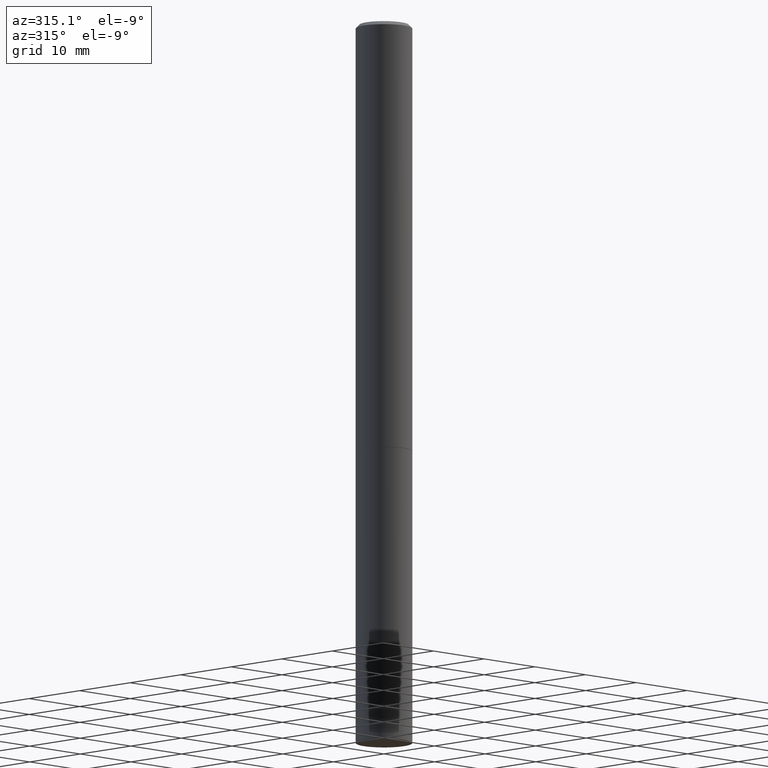
[diagram: clean part render]
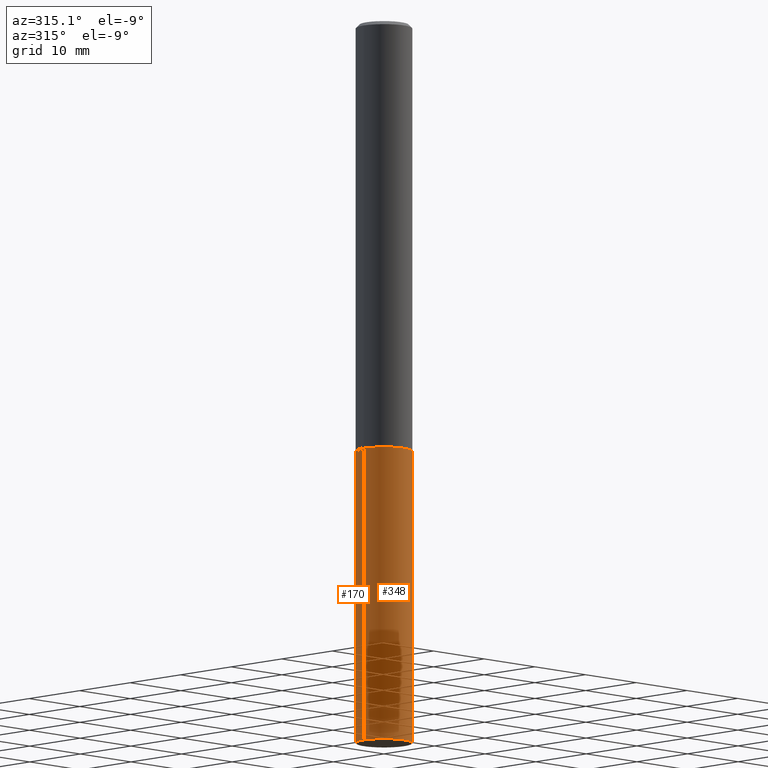
[diagram: same view with one multi-face feature highlighted, each face labeled with its STEP entity id]
A machine part, auxiliary view. The highlighted faces form ONE feature: a constant-radius fillet chain: 2 tangent blend faces with common blend radius 3.9688 mm. The faces share edges in the B-rep.
Their STEP definitions:
[1] entity #170 (Cylinder):
#12 = DIRECTION ( 'NONE',  ( -2.445468806185136597E-29, 3.491481338843145583E-15, 1.000000000000000000 ) ) ;
#20 = CYLINDRICAL_SURFACE ( 'NONE', #230, 0.1562500000000000000 ) ;
#21 = DIRECTION ( 'NONE',  ( 1.000000000000000000, -6.982962677686262766E-15, 0.000000000000000000 ) ) ;
#22 = EDGE_CURVE ( 'NONE', #262, #85, #371, .T. ) ;
#27 = CIRCLE ( 'NONE', #244, 0.1562500000000000000 ) ;
#35 = LINE ( 'NONE', #331, #91 ) ;
#39 = EDGE_CURVE ( 'NONE', #55, #148, #35, .T. ) ;
#51 = ORIENTED_EDGE ( 'NONE', *, *, #260, .F. ) ;
#55 = VERTEX_POINT ( 'NONE', #201 ) ;
#61 = DIRECTION ( 'NONE',  ( -2.445468806185136877E-29, 3.491481338843145188E-15, 1.000000000000000000 ) ) ;
#72 = CARTESIAN_POINT ( 'NONE',  ( 0.1562500000000000000, -1.091087918388479174E-15, 7.619026212181150377E-30 ) ) ;
#85 = VERTEX_POINT ( 'NONE', #344 ) ;
#91 = VECTOR ( 'NONE', #61, 39.37007874015748143 ) ;
#96 = CARTESIAN_POINT ( 'NONE',  ( 9.781875224740546387E-29, -1.396592535537258233E-14, -4.000000000000000000 ) ) ;
#111 = FACE_OUTER_BOUND ( 'NONE', #206, .T. ) ;
#114 = CIRCLE ( 'NONE', #385, 0.1562500000000000000 ) ;
#115 = ORIENTED_EDGE ( 'NONE', *, *, #39, .T. ) ;
#128 = CARTESIAN_POINT ( 'NONE',  ( 0.1562499999999997224, -1.503787816752438098E-14, -4.000000000000000000 ) ) ;
#131 = DIRECTION ( 'NONE',  ( 1.000000000000000000, -6.982962677686262766E-15, 0.000000000000000000 ) ) ;
#140 = DIRECTION ( 'NONE',  ( 1.000000000000000000, -6.982962677686266711E-15, 4.876176775795936353E-29 ) ) ;
#148 = VERTEX_POINT ( 'NONE', #192 ) ;
#165 = EDGE_CURVE ( 'NONE', #262, #55, #27, .T. ) ;
#170 = ADVANCED_FACE ( 'NONE', ( #111 ), #20, .T. ) ;
#177 = ORIENTED_EDGE ( 'NONE', *, *, #165, .T. ) ;
#192 = CARTESIAN_POINT ( 'NONE',  ( -0.1562500000000000000, -1.001887374293736968E-14, -2.375000000000000000 ) ) ;
#198 = DIRECTION ( 'NONE',  ( -2.445468806185136597E-29, 3.491481338843145583E-15, 1.000000000000000000 ) ) ;
#201 = CARTESIAN_POINT ( 'NONE',  ( -0.1562499999999997224, -1.287483743698410395E-14, -4.000000000000000000 ) ) ;
#206 = EDGE_LOOP ( 'NONE', ( #177, #115, #51, #264 ) ) ;
#213 = DIRECTION ( 'NONE',  ( -2.445468806185136597E-29, 3.491481338843145583E-15, 1.000000000000000000 ) ) ;
#229 = CARTESIAN_POINT ( 'NONE',  ( 0.000000000000000000, 0.000000000000000000, 0.000000000000000000 ) ) ;
#230 = AXIS2_PLACEMENT_3D ( 'NONE', #229, #198, #140 ) ;
#244 = AXIS2_PLACEMENT_3D ( 'NONE', #96, #213, #21 ) ;
#260 = EDGE_CURVE ( 'NONE', #85, #148, #114, .T. ) ;
#262 = VERTEX_POINT ( 'NONE', #128 ) ;
#264 = ORIENTED_EDGE ( 'NONE', *, *, #22, .F. ) ;
#275 = CARTESIAN_POINT ( 'NONE',  ( 5.807988414689699417E-29, -8.292268179752470118E-15, -2.375000000000000000 ) ) ;
#314 = DIRECTION ( 'NONE',  ( -2.445468806185136877E-29, 3.491481338843145188E-15, 1.000000000000000000 ) ) ;
#331 = CARTESIAN_POINT ( 'NONE',  ( -0.1562500000000000000, 1.110223024625156540E-15, -7.685836078523291160E-30 ) ) ;
#344 = CARTESIAN_POINT ( 'NONE',  ( 0.1562500000000000000, -9.383356098140948502E-15, -2.375000000000000000 ) ) ;
#371 = LINE ( 'NONE', #72, #382 ) ;
#382 = VECTOR ( 'NONE', #314, 39.37007874015748143 ) ;
#385 = AXIS2_PLACEMENT_3D ( 'NONE', #275, #12, #131 ) ;
[2] entity #348 (Cylinder):
#22 = EDGE_CURVE ( 'NONE', #262, #85, #371, .T. ) ;
#26 = ORIENTED_EDGE ( 'NONE', *, *, #97, .T. ) ;
#30 = ORIENTED_EDGE ( 'NONE', *, *, #22, .T. ) ;
#35 = LINE ( 'NONE', #331, #91 ) ;
#39 = EDGE_CURVE ( 'NONE', #55, #148, #35, .T. ) ;
#47 = DIRECTION ( 'NONE',  ( -2.445468806185136597E-29, 3.491481338843145583E-15, 1.000000000000000000 ) ) ;
#55 = VERTEX_POINT ( 'NONE', #201 ) ;
#61 = DIRECTION ( 'NONE',  ( -2.445468806185136877E-29, 3.491481338843145188E-15, 1.000000000000000000 ) ) ;
#72 = CARTESIAN_POINT ( 'NONE',  ( 0.1562500000000000000, -1.091087918388479174E-15, 7.619026212181150377E-30 ) ) ;
#73 = DIRECTION ( 'NONE',  ( -2.445468806185136597E-29, 3.491481338843145583E-15, 1.000000000000000000 ) ) ;
#85 = VERTEX_POINT ( 'NONE', #344 ) ;
#91 = VECTOR ( 'NONE', #61, 39.37007874015748143 ) ;
#97 = EDGE_CURVE ( 'NONE', #55, #262, #320, .T. ) ;
#109 = DIRECTION ( 'NONE',  ( 1.000000000000000000, -6.982962677686262766E-15, 0.000000000000000000 ) ) ;
#120 = CIRCLE ( 'NONE', #347, 0.1562500000000000000 ) ;
#128 = CARTESIAN_POINT ( 'NONE',  ( 0.1562499999999997224, -1.503787816752438098E-14, -4.000000000000000000 ) ) ;
#129 = DIRECTION ( 'NONE',  ( 1.000000000000000000, -6.982962677686262766E-15, 0.000000000000000000 ) ) ;
#134 = CARTESIAN_POINT ( 'NONE',  ( 0.000000000000000000, 0.000000000000000000, 0.000000000000000000 ) ) ;
#148 = VERTEX_POINT ( 'NONE', #192 ) ;
#186 = DIRECTION ( 'NONE',  ( -2.445468806185136597E-29, 3.491481338843145583E-15, 1.000000000000000000 ) ) ;
#189 = DIRECTION ( 'NONE',  ( 1.000000000000000000, -6.982962677686266711E-15, 4.876176775795936353E-29 ) ) ;
#192 = CARTESIAN_POINT ( 'NONE',  ( -0.1562500000000000000, -1.001887374293736968E-14, -2.375000000000000000 ) ) ;
#201 = CARTESIAN_POINT ( 'NONE',  ( -0.1562499999999997224, -1.287483743698410395E-14, -4.000000000000000000 ) ) ;
#218 = CARTESIAN_POINT ( 'NONE',  ( 9.781875224740546387E-29, -1.396592535537258233E-14, -4.000000000000000000 ) ) ;
#231 = EDGE_CURVE ( 'NONE', #148, #85, #120, .T. ) ;
#235 = ORIENTED_EDGE ( 'NONE', *, *, #231, .F. ) ;
#262 = VERTEX_POINT ( 'NONE', #128 ) ;
#263 = AXIS2_PLACEMENT_3D ( 'NONE', #218, #186, #129 ) ;
#266 = ORIENTED_EDGE ( 'NONE', *, *, #39, .F. ) ;
#314 = DIRECTION ( 'NONE',  ( -2.445468806185136877E-29, 3.491481338843145188E-15, 1.000000000000000000 ) ) ;
#320 = CIRCLE ( 'NONE', #263, 0.1562500000000000000 ) ;
#331 = CARTESIAN_POINT ( 'NONE',  ( -0.1562500000000000000, 1.110223024625156540E-15, -7.685836078523291160E-30 ) ) ;
#342 = CYLINDRICAL_SURFACE ( 'NONE', #349, 0.1562500000000000000 ) ;
#344 = CARTESIAN_POINT ( 'NONE',  ( 0.1562500000000000000, -9.383356098140948502E-15, -2.375000000000000000 ) ) ;
#347 = AXIS2_PLACEMENT_3D ( 'NONE', #379, #47, #109 ) ;
#348 = ADVANCED_FACE ( 'NONE', ( #366 ), #342, .T. ) ;
#349 = AXIS2_PLACEMENT_3D ( 'NONE', #134, #73, #189 ) ;
#366 = FACE_OUTER_BOUND ( 'NONE', #390, .T. ) ;
#371 = LINE ( 'NONE', #72, #382 ) ;
#379 = CARTESIAN_POINT ( 'NONE',  ( 5.807988414689699417E-29, -8.292268179752470118E-15, -2.375000000000000000 ) ) ;
#382 = VECTOR ( 'NONE', #314, 39.37007874015748143 ) ;
#390 = EDGE_LOOP ( 'NONE', ( #266, #26, #30, #235 ) ) ;